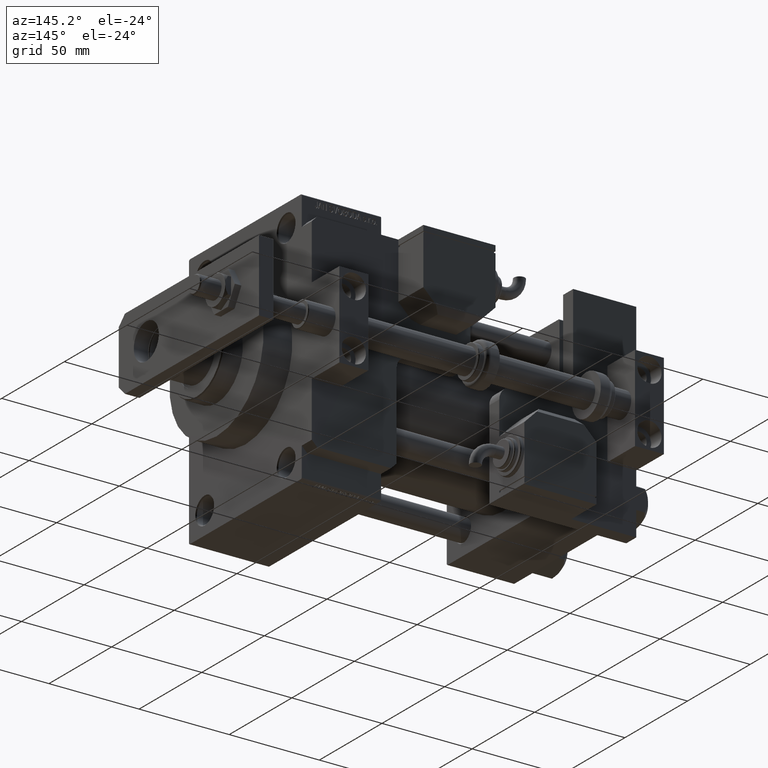
[diagram: clean part render]
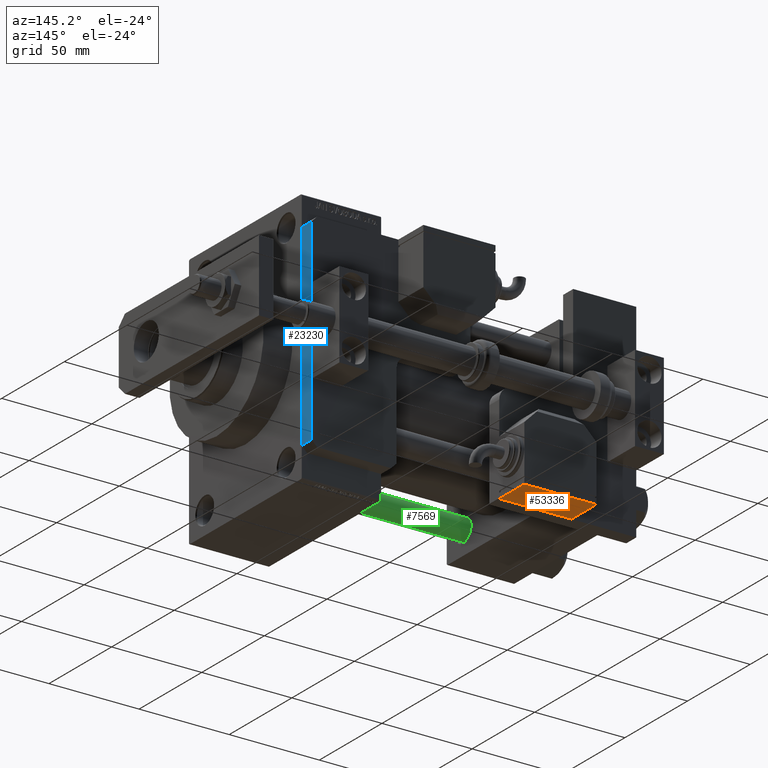
[diagram: same view with three faces highlighted in distinct colors, each labeled with its STEP entity id]
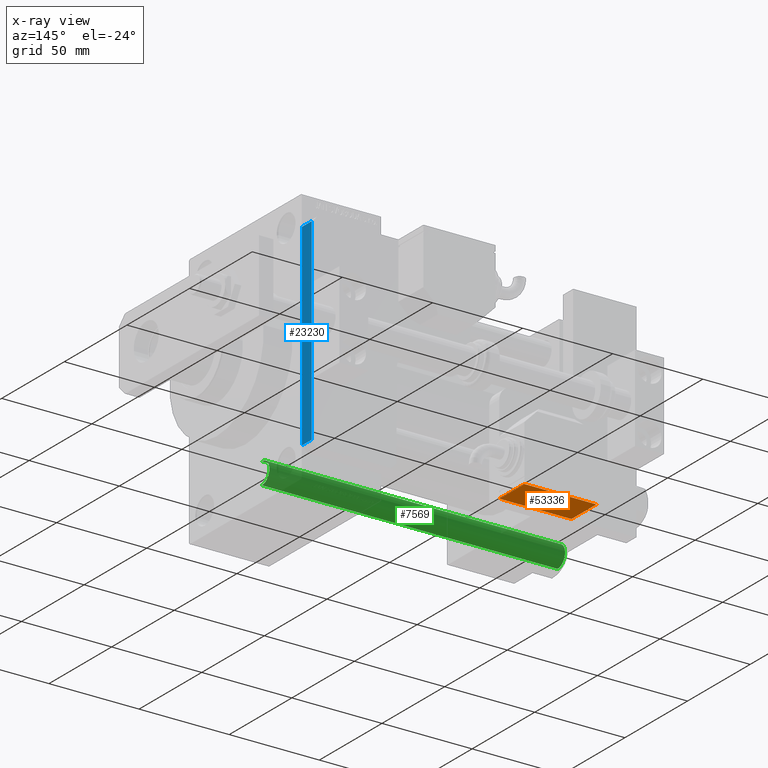
[diagram: x-ray of the same camera — body ghosted, the three highlighted faces saturated]
A machine part, auxiliary view with three faces highlighted in distinct colors.
The next image is the same camera in x-ray (body ghosted, the three faces saturated) — at least one of them is partly hidden behind the body in this view.
Their STEP definitions:

[orange] entity #53336 — the highlighted planar face has unit normal (-0, -0, 1).
#902 = DIRECTION ( 'NONE',  ( 0.000000000000000000, 1.000000000000000000, 0.000000000000000000 ) ) ;
#1269 = CARTESIAN_POINT ( 'NONE',  ( 20.00000000000005329, -17.49999999999996092, -9.999999999999998224 ) ) ;
#2156 = EDGE_LOOP ( 'NONE', ( #44048, #4027, #31329, #19539 ) ) ;
#4027 = ORIENTED_EDGE ( 'NONE', *, *, #38367, .T. ) ;
#4829 = DIRECTION ( 'NONE',  ( 0.000000000000000000, 0.000000000000000000, 1.000000000000000000 ) ) ;
#4922 = VERTEX_POINT ( 'NONE', #1269 ) ;
#10334 = PLANE ( 'NONE',  #31423 ) ;
#18175 = VERTEX_POINT ( 'NONE', #27795 ) ;
#18511 = CARTESIAN_POINT ( 'NONE',  ( -19.99999999999994316, -17.49999999999996092, -9.999999999999998224 ) ) ;
#18588 = DIRECTION ( 'NONE',  ( -1.000000000000000000, -0.000000000000000000, -0.000000000000000000 ) ) ;
#19539 = ORIENTED_EDGE ( 'NONE', *, *, #19645, .T. ) ;
#19645 = EDGE_CURVE ( 'NONE', #21553, #4922, #36288, .T. ) ;
#20949 = VERTEX_POINT ( 'NONE', #36884 ) ;
#21528 = LINE ( 'NONE', #25973, #48069 ) ;
#21553 = VERTEX_POINT ( 'NONE', #51538 ) ;
#22042 = VECTOR ( 'NONE', #44916, 1000.000000000000000 ) ;
#24412 = VECTOR ( 'NONE', #36952, 1000.000000000000000 ) ;
#25973 = CARTESIAN_POINT ( 'NONE',  ( 20.00000000000005329, -17.49999999999996092, -9.999999999999998224 ) ) ;
#27022 = DIRECTION ( 'NONE',  ( 0.000000000000000000, -0.000000000000000000, 1.000000000000000000 ) ) ;
#27795 = CARTESIAN_POINT ( 'NONE',  ( 20.00000000000005329, -17.49999999999996092, 10.00000000000000000 ) ) ;
#28114 = EDGE_CURVE ( 'NONE', #4922, #18175, #21528, .T. ) ;
#28318 = LINE ( 'NONE', #45286, #24412 ) ;
#31329 = ORIENTED_EDGE ( 'NONE', *, *, #52222, .T. ) ;
#31423 = AXIS2_PLACEMENT_3D ( 'NONE', #39005, #902, #27022 ) ;
#31657 = CARTESIAN_POINT ( 'NONE',  ( -19.99999999999994316, -17.49999999999996092, 10.00000000000000000 ) ) ;
#32834 = VECTOR ( 'NONE', #18588, 1000.000000000000000 ) ;
#35818 = LINE ( 'NONE', #31657, #32834 ) ;
#36288 = LINE ( 'NONE', #18511, #22042 ) ;
#36884 = CARTESIAN_POINT ( 'NONE',  ( -19.99999999999994316, -17.49999999999996092, 10.00000000000000000 ) ) ;
#36952 = DIRECTION ( 'NONE',  ( -0.000000000000000000, -0.000000000000000000, -1.000000000000000000 ) ) ;
#38367 = EDGE_CURVE ( 'NONE', #18175, #20949, #35818, .T. ) ;
#39005 = CARTESIAN_POINT ( 'NONE',  ( 0.000000000000000000, -17.49999999999996092, 0.000000000000000000 ) ) ;
#44048 = ORIENTED_EDGE ( 'NONE', *, *, #28114, .T. ) ;
#44916 = DIRECTION ( 'NONE',  ( 1.000000000000000000, 0.000000000000000000, 0.000000000000000000 ) ) ;
#45286 = CARTESIAN_POINT ( 'NONE',  ( -19.99999999999994316, -17.49999999999996092, -9.999999999999998224 ) ) ;
#48069 = VECTOR ( 'NONE', #4829, 1000.000000000000000 ) ;
#48158 = FACE_OUTER_BOUND ( 'NONE', #2156, .T. ) ;
#51538 = CARTESIAN_POINT ( 'NONE',  ( -19.99999999999994316, -17.49999999999996092, -9.999999999999998224 ) ) ;
#52222 = EDGE_CURVE ( 'NONE', #20949, #21553, #28318, .T. ) ;
#53336 = ADVANCED_FACE ( 'NONE', ( #48158 ), #10334, .F. ) ;

[blue] entity #23230 — the highlighted planar face has unit normal (-1, -0, 0).
#145 = DIRECTION ( 'NONE',  ( 0.000000000000000000, 1.000000000000000000, 0.000000000000000000 ) ) ;
#333 = VERTEX_POINT ( 'NONE', #15231 ) ;
#702 = DIRECTION ( 'NONE',  ( 0.000000000000000000, 0.000000000000000000, -1.000000000000000000 ) ) ;
#13775 = CARTESIAN_POINT ( 'NONE',  ( 2.999999999999975131, 0.000000000000000000, 8.000000000000000000 ) ) ;
#15231 = CARTESIAN_POINT ( 'NONE',  ( 2.999999999999975131, 0.000000000000000000, 8.000000000000000000 ) ) ;
#16350 = LINE ( 'NONE', #33305, #27502 ) ;
#16580 = FACE_OUTER_BOUND ( 'NONE', #42817, .T. ) ;
#17074 = LINE ( 'NONE', #34030, #37197 ) ;
#19410 = AXIS2_PLACEMENT_3D ( 'NONE', #45782, #145, #20754 ) ;
#20220 = EDGE_CURVE ( 'NONE', #333, #27532, #38528, .T. ) ;
#20754 = DIRECTION ( 'NONE',  ( 0.000000000000000000, -0.000000000000000000, 1.000000000000000000 ) ) ;
#22798 = ORIENTED_EDGE ( 'NONE', *, *, #24044, .T. ) ;
#23230 = ADVANCED_FACE ( 'NONE', ( #16580 ), #37708, .F. ) ;
#24044 = EDGE_CURVE ( 'NONE', #44726, #54514, #45738, .T. ) ;
#24168 = EDGE_CURVE ( 'NONE', #27532, #44726, #17074, .T. ) ;
#25691 = DIRECTION ( 'NONE',  ( 1.000000000000000000, 0.000000000000000000, 0.000000000000000000 ) ) ;
#25980 = EDGE_CURVE ( 'NONE', #333, #54514, #16350, .T. ) ;
#27412 = VECTOR ( 'NONE', #37389, 1000.000000000000000 ) ;
#27502 = VECTOR ( 'NONE', #49996, 1000.000000000000000 ) ;
#27532 = VERTEX_POINT ( 'NONE', #47245 ) ;
#27931 = CARTESIAN_POINT ( 'NONE',  ( 111.9999999999999858, 0.000000000000000000, 8.000000000000000000 ) ) ;
#29181 = VECTOR ( 'NONE', #702, 1000.000000000000000 ) ;
#33305 = CARTESIAN_POINT ( 'NONE',  ( 0.000000000000000000, 0.000000000000000000, 8.000000000000000000 ) ) ;
#34030 = CARTESIAN_POINT ( 'NONE',  ( 0.000000000000000000, 0.000000000000000000, 0.000000000000000000 ) ) ;
#35034 = CARTESIAN_POINT ( 'NONE',  ( 111.9999999999999858, 0.000000000000000000, 0.000000000000000000 ) ) ;
#37197 = VECTOR ( 'NONE', #25691, 1000.000000000000000 ) ;
#37389 = DIRECTION ( 'NONE',  ( 0.000000000000000000, 0.000000000000000000, 1.000000000000000000 ) ) ;
#37708 = PLANE ( 'NONE',  #19410 ) ;
#38528 = LINE ( 'NONE', #13775, #29181 ) ;
#40225 = ORIENTED_EDGE ( 'NONE', *, *, #25980, .F. ) ;
#42817 = EDGE_LOOP ( 'NONE', ( #43168, #22798, #40225, #52602 ) ) ;
#43168 = ORIENTED_EDGE ( 'NONE', *, *, #24168, .T. ) ;
#44726 = VERTEX_POINT ( 'NONE', #35034 ) ;
#45738 = LINE ( 'NONE', #27931, #27412 ) ;
#45782 = CARTESIAN_POINT ( 'NONE',  ( 0.000000000000000000, 0.000000000000000000, 8.000000000000000000 ) ) ;
#47245 = CARTESIAN_POINT ( 'NONE',  ( 2.999999999999975131, 0.000000000000000000, 0.000000000000000000 ) ) ;
#49996 = DIRECTION ( 'NONE',  ( 1.000000000000000000, 0.000000000000000000, 0.000000000000000000 ) ) ;
#52602 = ORIENTED_EDGE ( 'NONE', *, *, #20220, .T. ) ;
#53505 = CARTESIAN_POINT ( 'NONE',  ( 111.9999999999999858, 0.000000000000000000, 8.000000000000000000 ) ) ;
#54514 = VERTEX_POINT ( 'NONE', #53505 ) ;

[green] entity #7569 — the highlighted cylindrical surface (edge-blend (fillet) strip) has radius 6 mm, axis along (1, 0, 0).
#234 = CIRCLE ( 'NONE', #31309, 6.000000000000000888 ) ;
#334 = DIRECTION ( 'NONE',  ( -0.000000000000000000, -0.000000000000000000, -1.000000000000000000 ) ) ;
#1014 = DIRECTION ( 'NONE',  ( 1.000000000000000000, 0.000000000000000000, 0.000000000000000000 ) ) ;
#2038 = ORIENTED_EDGE ( 'NONE', *, *, #25043, .T. ) ;
#2700 = CARTESIAN_POINT ( 'NONE',  ( -6.000000000000000888, 0.000000000000000000, 164.5000000000000000 ) ) ;
#5316 = DIRECTION ( 'NONE',  ( -1.000000000000000000, 0.000000000000000000, 0.000000000000000000 ) ) ;
#6357 = CARTESIAN_POINT ( 'NONE',  ( 0.000000000000000000, 0.000000000000000000, 0.5000000000000281997 ) ) ;
#6943 = ORIENTED_EDGE ( 'NONE', *, *, #15420, .T. ) ;
#7569 = ADVANCED_FACE ( 'NONE', ( #8675 ), #25644, .T. ) ;
#8675 = FACE_OUTER_BOUND ( 'NONE', #44859, .T. ) ;
#9231 = CARTESIAN_POINT ( 'NONE',  ( 0.000000000000000000, 0.000000000000000000, 165.0000000000000000 ) ) ;
#11831 = CARTESIAN_POINT ( 'NONE',  ( 6.000000000000000888, 7.347880794884120722E-16, 165.0000000000000000 ) ) ;
#13182 = LINE ( 'NONE', #54903, #44322 ) ;
#13311 = VECTOR ( 'NONE', #50479, 1000.000000000000000 ) ;
#15420 = EDGE_CURVE ( 'NONE', #18277, #52238, #50327, .T. ) ;
#18277 = VERTEX_POINT ( 'NONE', #45604 ) ;
#18623 = DIRECTION ( 'NONE',  ( -0.000000000000000000, -0.000000000000000000, 1.000000000000000000 ) ) ;
#19235 = VERTEX_POINT ( 'NONE', #2700 ) ;
#19619 = ORIENTED_EDGE ( 'NONE', *, *, #42178, .F. ) ;
#22805 = DIRECTION ( 'NONE',  ( 1.000000000000000000, 0.000000000000000000, 0.000000000000000000 ) ) ;
#23598 = AXIS2_PLACEMENT_3D ( 'NONE', #9231, #334, #5316 ) ;
#25043 = EDGE_CURVE ( 'NONE', #19235, #18277, #13182, .T. ) ;
#25644 = CYLINDRICAL_SURFACE ( 'NONE', #23598, 6.000000000000000888 ) ;
#28222 = ORIENTED_EDGE ( 'NONE', *, *, #47216, .T. ) ;
#29609 = LINE ( 'NONE', #11831, #13311 ) ;
#31309 = AXIS2_PLACEMENT_3D ( 'NONE', #51364, #34118, #1014 ) ;
#34118 = DIRECTION ( 'NONE',  ( 0.000000000000000000, 0.000000000000000000, -1.000000000000000000 ) ) ;
#37780 = CARTESIAN_POINT ( 'NONE',  ( 6.000000000000000888, 7.347880794884120722E-16, 0.5000000000000281997 ) ) ;
#38204 = DIRECTION ( 'NONE',  ( -0.000000000000000000, -0.000000000000000000, -1.000000000000000000 ) ) ;
#41643 = VERTEX_POINT ( 'NONE', #50350 ) ;
#42178 = EDGE_CURVE ( 'NONE', #41643, #52238, #29609, .T. ) ;
#44322 = VECTOR ( 'NONE', #38204, 1000.000000000000000 ) ;
#44859 = EDGE_LOOP ( 'NONE', ( #19619, #28222, #2038, #6943 ) ) ;
#45604 = CARTESIAN_POINT ( 'NONE',  ( -6.000000000000000888, 0.000000000000000000, 0.5000000000000281997 ) ) ;
#47216 = EDGE_CURVE ( 'NONE', #41643, #19235, #234, .T. ) ;
#50327 = CIRCLE ( 'NONE', #54769, 6.000000000000000888 ) ;
#50350 = CARTESIAN_POINT ( 'NONE',  ( 6.000000000000000888, 7.347880794884120722E-16, 164.5000000000000000 ) ) ;
#50479 = DIRECTION ( 'NONE',  ( -0.000000000000000000, -0.000000000000000000, -1.000000000000000000 ) ) ;
#51364 = CARTESIAN_POINT ( 'NONE',  ( 0.000000000000000000, 0.000000000000000000, 164.5000000000000000 ) ) ;
#52238 = VERTEX_POINT ( 'NONE', #37780 ) ;
#54769 = AXIS2_PLACEMENT_3D ( 'NONE', #6357, #18623, #22805 ) ;
#54903 = CARTESIAN_POINT ( 'NONE',  ( -6.000000000000000888, 0.000000000000000000, 165.0000000000000000 ) ) ;